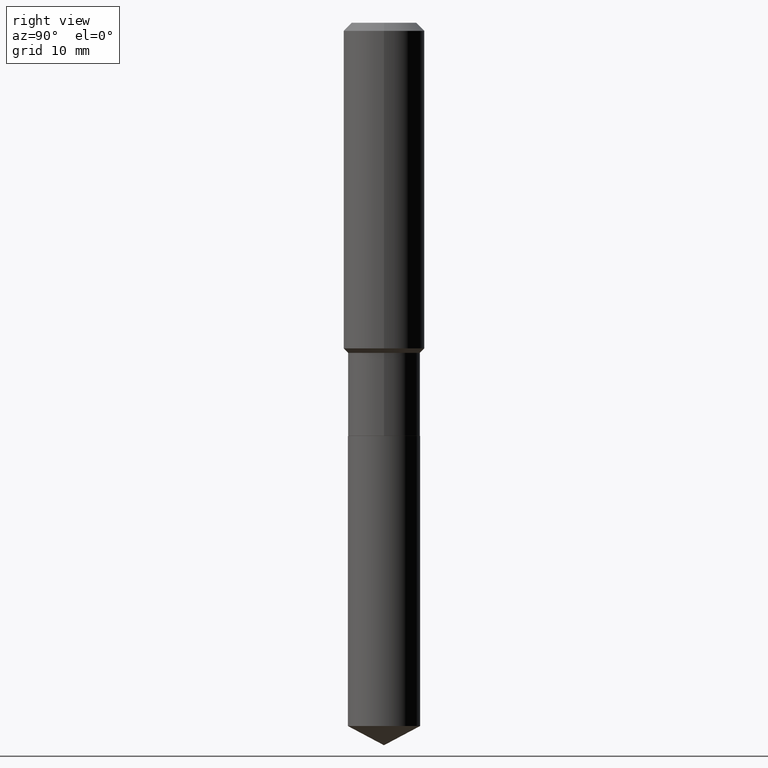
[diagram: clean part render]
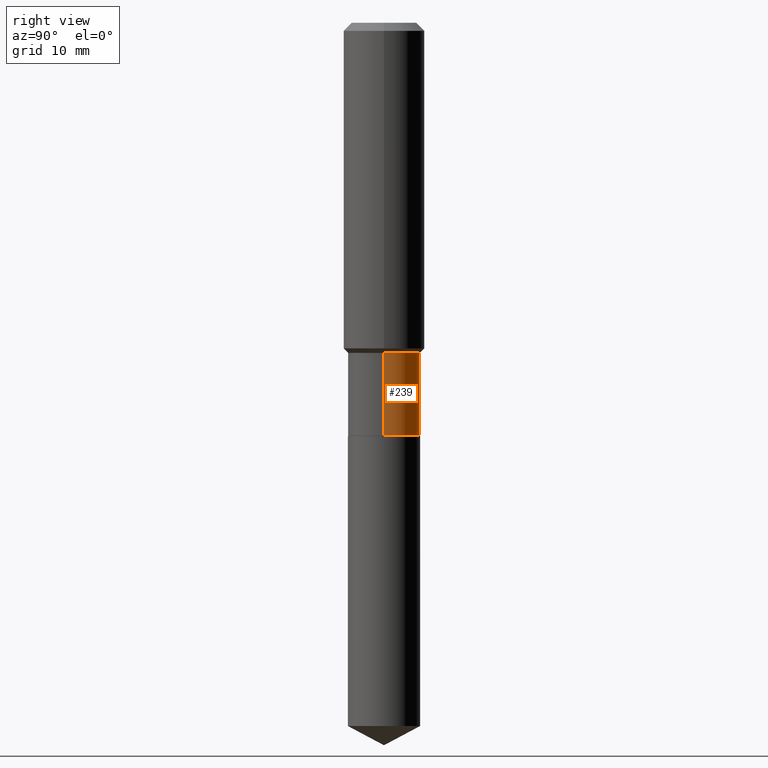
[diagram: same view with one face highlighted and labeled with its STEP entity id]
A machine part, right view. The second image highlights one B-rep face of the part: STEP entity #239.
In plain terms, the highlighted cylindrical surface (edge-blend (fillet) strip) has radius 4.4501 mm, axis along (-0, 0, 1).
Its self-contained STEP definition (entity closure, byte-faithful):
#11 = EDGE_CURVE ( 'NONE', #361, #326, #307, .T. ) ;
#16 = DIRECTION ( 'NONE',  ( -2.445468806185136877E-29, 3.491481338843145188E-15, 1.000000000000000000 ) ) ;
#17 = EDGE_CURVE ( 'NONE', #228, #244, #417, .T. ) ;
#42 = ORIENTED_EDGE ( 'NONE', *, *, #11, .T. ) ;
#43 = DIRECTION ( 'NONE',  ( 1.000000000000000000, -6.982962677686267499E-15, 0.000000000000000000 ) ) ;
#59 = CARTESIAN_POINT ( 'NONE',  ( 0.1751999999999999391, -6.812927536484624885E-15, -1.600899999999999768 ) ) ;
#70 = LINE ( 'NONE', #220, #353 ) ;
#93 = DIRECTION ( 'NONE',  ( -2.445468806185136597E-29, 3.491481338843145583E-15, 1.000000000000000000 ) ) ;
#94 = CARTESIAN_POINT ( 'NONE',  ( 0.1752000000000000224, -8.218248775368990478E-15, -2.003399999999999626 ) ) ;
#108 = ORIENTED_EDGE ( 'NONE', *, *, #158, .F. ) ;
#133 = CARTESIAN_POINT ( 'NONE',  ( -0.1752000000000000224, -5.047302221744479303E-15, -2.003399999999999626 ) ) ;
#157 = AXIS2_PLACEMENT_3D ( 'NONE', #264, #306, #334 ) ;
#158 = EDGE_CURVE ( 'NONE', #361, #228, #359, .T. ) ;
#164 = CARTESIAN_POINT ( 'NONE',  ( 0.1751999999999999946, -1.223415061130633680E-15, 8.543061711194479319E-30 ) ) ;
#183 = CYLINDRICAL_SURFACE ( 'NONE', #157, 0.1751999999999999946 ) ;
#220 = CARTESIAN_POINT ( 'NONE',  ( -0.1751999999999999946, 1.244870873051695487E-15, -8.617974278126594374E-30 ) ) ;
#228 = VERTEX_POINT ( 'NONE', #59 ) ;
#236 = AXIS2_PLACEMENT_3D ( 'NONE', #368, #93, #43 ) ;
#239 = ADVANCED_FACE ( 'NONE', ( #257 ), #183, .T. ) ;
#244 = VERTEX_POINT ( 'NONE', #298 ) ;
#249 = DIRECTION ( 'NONE',  ( 1.000000000000000000, -6.982962677686265133E-15, 0.000000000000000000 ) ) ;
#257 = FACE_OUTER_BOUND ( 'NONE', #485, .T. ) ;
#264 = CARTESIAN_POINT ( 'NONE',  ( 0.000000000000000000, 0.000000000000000000, 0.000000000000000000 ) ) ;
#291 = DIRECTION ( 'NONE',  ( -2.445468806185136597E-29, 3.491481338843145583E-15, 1.000000000000000000 ) ) ;
#298 = CARTESIAN_POINT ( 'NONE',  ( -0.1751999999999999391, -5.047302221744479303E-15, -1.600899999999999768 ) ) ;
#306 = DIRECTION ( 'NONE',  ( -2.445468806185136597E-29, 3.491481338843145583E-15, 1.000000000000000000 ) ) ;
#307 = CIRCLE ( 'NONE', #236, 0.1752000000000000224 ) ;
#326 = VERTEX_POINT ( 'NONE', #133 ) ;
#334 = DIRECTION ( 'NONE',  ( 1.000000000000000000, -6.982962677686265133E-15, 4.876176775795935793E-29 ) ) ;
#338 = DIRECTION ( 'NONE',  ( -2.445468806185136877E-29, 3.491481338843145188E-15, 1.000000000000000000 ) ) ;
#342 = ORIENTED_EDGE ( 'NONE', *, *, #444, .T. ) ;
#353 = VECTOR ( 'NONE', #338, 39.37007874015748143 ) ;
#359 = LINE ( 'NONE', #164, #488 ) ;
#361 = VERTEX_POINT ( 'NONE', #94 ) ;
#368 = CARTESIAN_POINT ( 'NONE',  ( 4.899252206311301777E-29, -6.994833714238356601E-15, -2.003399999999999626 ) ) ;
#417 = CIRCLE ( 'NONE', #424, 0.1751999999999999391 ) ;
#424 = AXIS2_PLACEMENT_3D ( 'NONE', #437, #291, #249 ) ;
#437 = CARTESIAN_POINT ( 'NONE',  ( 3.914951011821784364E-29, -5.589512475353991008E-15, -1.600899999999999768 ) ) ;
#444 = EDGE_CURVE ( 'NONE', #326, #244, #70, .T. ) ;
#465 = ORIENTED_EDGE ( 'NONE', *, *, #17, .F. ) ;
#485 = EDGE_LOOP ( 'NONE', ( #42, #342, #465, #108 ) ) ;
#488 = VECTOR ( 'NONE', #16, 39.37007874015748143 ) ;